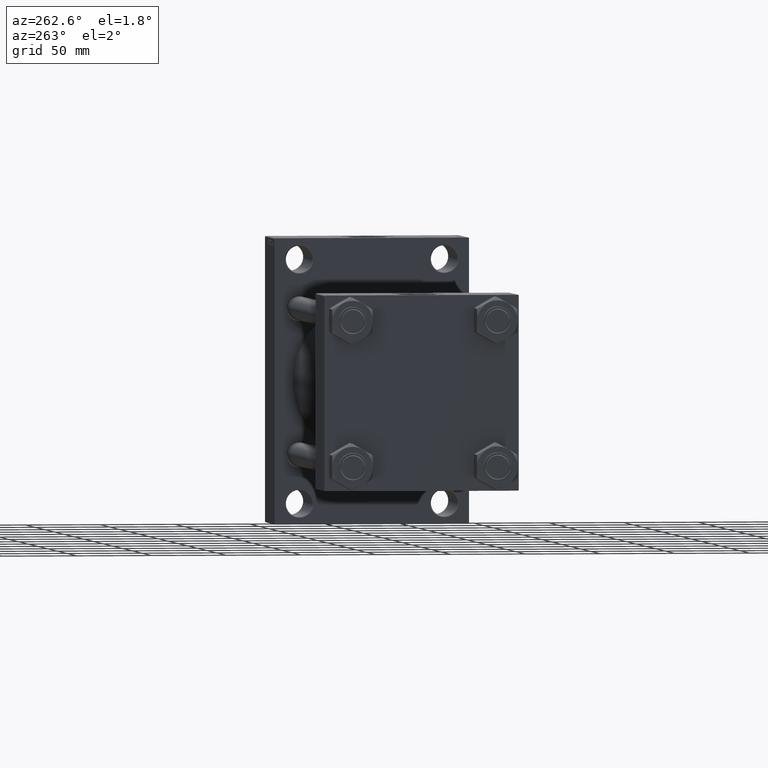
[diagram: clean part render]
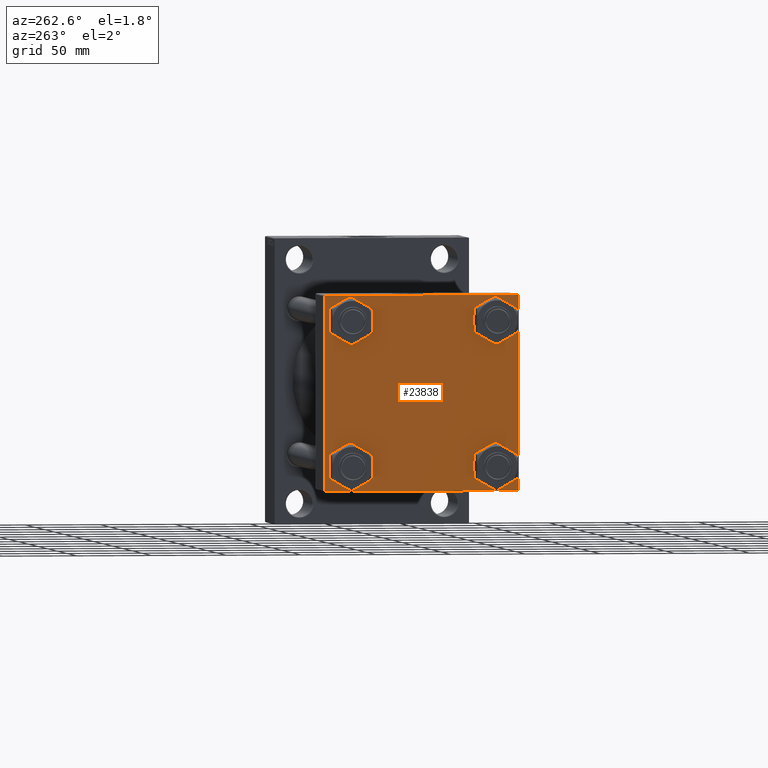
[diagram: same view with one face highlighted and labeled with its STEP entity id]
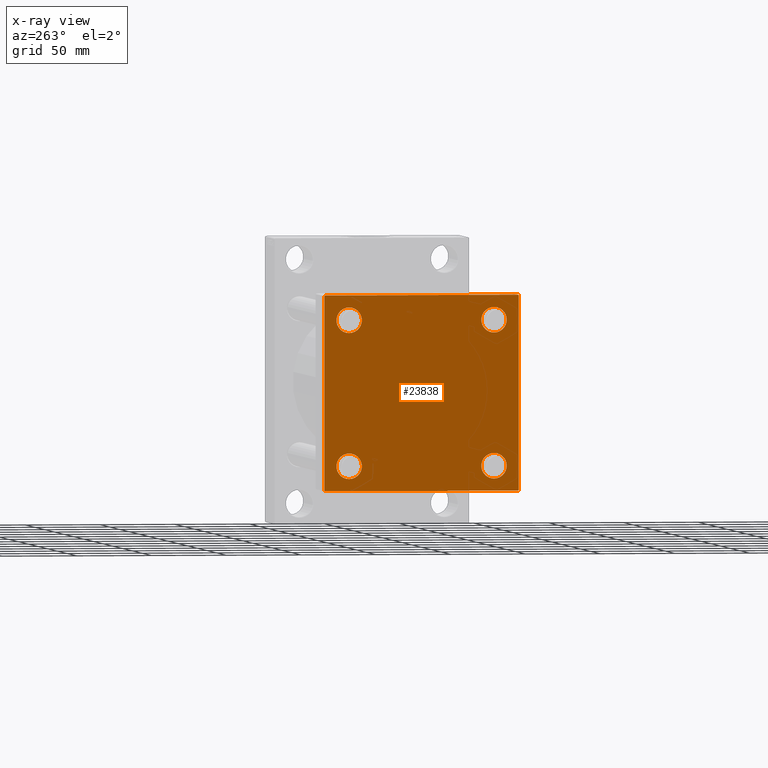
[diagram: x-ray of the same camera — body ghosted, the highlighted face saturated]
A machine part, auxiliary view. The second image highlights one B-rep face of the part: STEP entity #23838.
The next image is the same camera in x-ray: the body ghosted, the highlighted face saturated — about 0% of this face is hidden behind the body in this view.
In plain terms, the highlighted planar face has unit normal (-1, 0, 0).
Its self-contained STEP definition (entity closure, byte-faithful):
#43 = VERTEX_POINT ( 'NONE', #19700 ) ;
#137 = ORIENTED_EDGE ( 'NONE', *, *, #29855, .T. ) ;
#1034 = EDGE_CURVE ( 'NONE', #43, #4704, #29228, .T. ) ;
#1910 = CARTESIAN_POINT ( 'NONE',  ( 0.000000000000000000, 65.00000000000000000, -64.49999999999995737 ) ) ;
#1959 = EDGE_LOOP ( 'NONE', ( #34571, #24344 ) ) ;
#2569 = FACE_BOUND ( 'NONE', #22205, .T. ) ;
#4489 = ORIENTED_EDGE ( 'NONE', *, *, #38841, .T. ) ;
#4503 = CIRCLE ( 'NONE', #31686, 8.500000000000007105 ) ;
#4596 = AXIS2_PLACEMENT_3D ( 'NONE', #13639, #31875, #43528 ) ;
#4671 = AXIS2_PLACEMENT_3D ( 'NONE', #17867, #13079, #32695 ) ;
#4704 = VERTEX_POINT ( 'NONE', #11663 ) ;
#6111 = VECTOR ( 'NONE', #21741, 1000.000000000000000 ) ;
#6198 = CARTESIAN_POINT ( 'NONE',  ( 0.000000000000000000, 64.49999999999997158, 65.00000000000001421 ) ) ;
#6477 = FACE_BOUND ( 'NONE', #31583, .T. ) ;
#6911 = EDGE_CURVE ( 'NONE', #29874, #20203, #35821, .T. ) ;
#6914 = CARTESIAN_POINT ( 'NONE',  ( 0.000000000000000000, 65.00000000000000000, 65.00000000000001421 ) ) ;
#7453 = EDGE_CURVE ( 'NONE', #34579, #45502, #28599, .T. ) ;
#7520 = CARTESIAN_POINT ( 'NONE',  ( 0.000000000000000000, -48.44999999999998153, 48.45000000000000995 ) ) ;
#8111 = EDGE_CURVE ( 'NONE', #29839, #18257, #18863, .T. ) ;
#8289 = CARTESIAN_POINT ( 'NONE',  ( 0.000000000000000000, 64.49999999999997158, -64.99999999999998579 ) ) ;
#8291 = ORIENTED_EDGE ( 'NONE', *, *, #45063, .T. ) ;
#9216 = DIRECTION ( 'NONE',  ( 0.000000000000000000, -1.000000000000000000, -2.135044278125300850E-16 ) ) ;
#9386 = VECTOR ( 'NONE', #24961, 1000.000000000000000 ) ;
#9850 = LINE ( 'NONE', #28564, #17205 ) ;
#10366 = VERTEX_POINT ( 'NONE', #6198 ) ;
#10371 = DIRECTION ( 'NONE',  ( -0.000000000000000000, 0.000000000000000000, 1.000000000000000000 ) ) ;
#10756 = EDGE_CURVE ( 'NONE', #16795, #23163, #38725, .T. ) ;
#10990 = DIRECTION ( 'NONE',  ( 1.000000000000000000, -0.000000000000000000, 0.000000000000000000 ) ) ;
#11216 = EDGE_LOOP ( 'NONE', ( #25351, #38980, #8291, #15106, #20060, #46714, #41236, #35990 ) ) ;
#11654 = DIRECTION ( 'NONE',  ( 0.000000000000000000, 0.000000000000000000, 1.000000000000000000 ) ) ;
#11663 = CARTESIAN_POINT ( 'NONE',  ( 0.000000000000000000, -48.44999999999998153, 56.95000000000001705 ) ) ;
#12425 = ORIENTED_EDGE ( 'NONE', *, *, #20228, .T. ) ;
#12533 = EDGE_CURVE ( 'NONE', #45502, #34579, #30972, .T. ) ;
#12696 = LINE ( 'NONE', #35523, #18445 ) ;
#12857 = VECTOR ( 'NONE', #9216, 1000.000000000000000 ) ;
#13079 = DIRECTION ( 'NONE',  ( 1.000000000000000000, -0.000000000000000000, 0.000000000000000000 ) ) ;
#13639 = CARTESIAN_POINT ( 'NONE',  ( 0.000000000000000000, 48.44999999999999574, -48.44999999999999574 ) ) ;
#14934 = EDGE_CURVE ( 'NONE', #42110, #24221, #31777, .T. ) ;
#15106 = ORIENTED_EDGE ( 'NONE', *, *, #6911, .T. ) ;
#15623 = CIRCLE ( 'NONE', #41995, 8.500000000000007105 ) ;
#16795 = VERTEX_POINT ( 'NONE', #33232 ) ;
#17205 = VECTOR ( 'NONE', #28815, 1000.000000000000114 ) ;
#17867 = CARTESIAN_POINT ( 'NONE',  ( 0.000000000000000000, -48.44999999999998153, 48.45000000000000995 ) ) ;
#18044 = CARTESIAN_POINT ( 'NONE',  ( 0.000000000000000000, 48.44999999999999574, 48.44999999999999574 ) ) ;
#18257 = VERTEX_POINT ( 'NONE', #19716 ) ;
#18410 = DIRECTION ( 'NONE',  ( 1.000000000000000000, -0.000000000000000000, 0.000000000000000000 ) ) ;
#18445 = VECTOR ( 'NONE', #31410, 1000.000000000000114 ) ;
#18863 = LINE ( 'NONE', #26396, #46502 ) ;
#19655 = CARTESIAN_POINT ( 'NONE',  ( 0.000000000000000000, 48.44999999999999574, 48.44999999999999574 ) ) ;
#19700 = CARTESIAN_POINT ( 'NONE',  ( 0.000000000000000000, -48.44999999999998153, 39.95000000000000284 ) ) ;
#19716 = CARTESIAN_POINT ( 'NONE',  ( 0.000000000000000000, -64.49999999999997158, 64.99999999999998579 ) ) ;
#19968 = CARTESIAN_POINT ( 'NONE',  ( 0.000000000000000000, 48.44999999999999574, -56.95000000000000284 ) ) ;
#20060 = ORIENTED_EDGE ( 'NONE', *, *, #22652, .F. ) ;
#20084 = AXIS2_PLACEMENT_3D ( 'NONE', #18044, #10990, #25320 ) ;
#20203 = VERTEX_POINT ( 'NONE', #29443 ) ;
#20228 = EDGE_CURVE ( 'NONE', #42403, #23388, #4503, .T. ) ;
#20244 = DIRECTION ( 'NONE',  ( 0.000000000000000000, 0.000000000000000000, -1.000000000000000000 ) ) ;
#20587 = CARTESIAN_POINT ( 'NONE',  ( 0.000000000000000000, 65.00000000000000000, 65.00000000000001421 ) ) ;
#20813 = CARTESIAN_POINT ( 'NONE',  ( 0.000000000000000000, 65.00000000000000000, 64.49999999999998579 ) ) ;
#21070 = FACE_BOUND ( 'NONE', #1959, .T. ) ;
#21303 = FACE_OUTER_BOUND ( 'NONE', #11216, .T. ) ;
#21741 = DIRECTION ( 'NONE',  ( 0.000000000000000000, -1.000000000000000000, -2.135044278125300850E-16 ) ) ;
#22138 = CARTESIAN_POINT ( 'NONE',  ( 0.000000000000000000, -48.44999999999998153, -48.45000000000000995 ) ) ;
#22205 = EDGE_LOOP ( 'NONE', ( #25021, #32159 ) ) ;
#22652 = EDGE_CURVE ( 'NONE', #29839, #20203, #27536, .T. ) ;
#22834 = DIRECTION ( 'NONE',  ( 1.000000000000000000, -0.000000000000000000, 0.000000000000000000 ) ) ;
#23163 = VERTEX_POINT ( 'NONE', #45642 ) ;
#23388 = VERTEX_POINT ( 'NONE', #24886 ) ;
#23838 = ADVANCED_FACE ( 'NONE', ( #21070, #35893, #2569, #6477, #21303 ), #36124, .T. ) ;
#23881 = CARTESIAN_POINT ( 'NONE',  ( 0.000000000000000000, -65.00000000000000000, 64.99999999999998579 ) ) ;
#23940 = VECTOR ( 'NONE', #36056, 1000.000000000000114 ) ;
#24221 = VERTEX_POINT ( 'NONE', #1910 ) ;
#24344 = ORIENTED_EDGE ( 'NONE', *, *, #1034, .T. ) ;
#24886 = CARTESIAN_POINT ( 'NONE',  ( 0.000000000000000000, -48.44999999999998153, -39.95000000000000284 ) ) ;
#24944 = EDGE_CURVE ( 'NONE', #10366, #18257, #25374, .T. ) ;
#24961 = DIRECTION ( 'NONE',  ( 0.000000000000000000, 0.000000000000000000, -1.000000000000000000 ) ) ;
#25021 = ORIENTED_EDGE ( 'NONE', *, *, #7453, .T. ) ;
#25320 = DIRECTION ( 'NONE',  ( 0.000000000000000000, 0.000000000000000000, 1.000000000000000000 ) ) ;
#25351 = ORIENTED_EDGE ( 'NONE', *, *, #14934, .T. ) ;
#25374 = LINE ( 'NONE', #6914, #6111 ) ;
#25464 = AXIS2_PLACEMENT_3D ( 'NONE', #32490, #43661, #10371 ) ;
#26111 = AXIS2_PLACEMENT_3D ( 'NONE', #7520, #45185, #11654 ) ;
#26396 = CARTESIAN_POINT ( 'NONE',  ( -0.000000000000000000, -64.74999999999819522, 64.75000000000179057 ) ) ;
#27449 = CARTESIAN_POINT ( 'NONE',  ( 0.000000000000000000, 48.44999999999999574, -48.44999999999999574 ) ) ;
#27536 = LINE ( 'NONE', #23881, #30876 ) ;
#27572 = CARTESIAN_POINT ( 'NONE',  ( 0.000000000000000000, -48.44999999999998153, -56.95000000000001705 ) ) ;
#27927 = CARTESIAN_POINT ( 'NONE',  ( 0.000000000000000000, 65.00000000000000000, -64.99999999999998579 ) ) ;
#28346 = EDGE_CURVE ( 'NONE', #4704, #43, #34187, .T. ) ;
#28564 = CARTESIAN_POINT ( 'NONE',  ( 0.000000000000000000, 64.74999999999998579, 64.74999999999998579 ) ) ;
#28599 = CIRCLE ( 'NONE', #37170, 8.500000000000007105 ) ;
#28815 = DIRECTION ( 'NONE',  ( 0.000000000000000000, 0.7071067811865474617, -0.7071067811865474617 ) ) ;
#28940 = CARTESIAN_POINT ( 'NONE',  ( 0.000000000000000000, -65.00000000000000000, 64.49999999999998579 ) ) ;
#29228 = CIRCLE ( 'NONE', #26111, 8.500000000000007105 ) ;
#29366 = DIRECTION ( 'NONE',  ( 0.000000000000000000, 0.000000000000000000, 1.000000000000000000 ) ) ;
#29443 = CARTESIAN_POINT ( 'NONE',  ( 0.000000000000000000, -65.00000000000000000, -64.49999999999995737 ) ) ;
#29839 = VERTEX_POINT ( 'NONE', #28940 ) ;
#29855 = EDGE_CURVE ( 'NONE', #23163, #16795, #15623, .T. ) ;
#29874 = VERTEX_POINT ( 'NONE', #41519 ) ;
#30362 = DIRECTION ( 'NONE',  ( 0.000000000000000000, 0.000000000000000000, 1.000000000000000000 ) ) ;
#30876 = VECTOR ( 'NONE', #20244, 1000.000000000000000 ) ;
#30972 = CIRCLE ( 'NONE', #4596, 8.500000000000007105 ) ;
#31410 = DIRECTION ( 'NONE',  ( -0.000000000000000000, -0.7071067811865474617, -0.7071067811865474617 ) ) ;
#31583 = EDGE_LOOP ( 'NONE', ( #34646, #137 ) ) ;
#31686 = AXIS2_PLACEMENT_3D ( 'NONE', #22138, #44261, #48146 ) ;
#31777 = LINE ( 'NONE', #20587, #9386 ) ;
#31875 = DIRECTION ( 'NONE',  ( 1.000000000000000000, -0.000000000000000000, 0.000000000000000000 ) ) ;
#32159 = ORIENTED_EDGE ( 'NONE', *, *, #12533, .T. ) ;
#32261 = VERTEX_POINT ( 'NONE', #8289 ) ;
#32490 = CARTESIAN_POINT ( 'NONE',  ( 0.000000000000000000, 0.000000000000000000, 0.000000000000000000 ) ) ;
#32695 = DIRECTION ( 'NONE',  ( 0.000000000000000000, 0.000000000000000000, 1.000000000000000000 ) ) ;
#33000 = CARTESIAN_POINT ( 'NONE',  ( 0.000000000000000000, -48.44999999999998153, -48.45000000000000995 ) ) ;
#33232 = CARTESIAN_POINT ( 'NONE',  ( 0.000000000000000000, 48.44999999999999574, 56.95000000000000284 ) ) ;
#34187 = CIRCLE ( 'NONE', #4671, 8.500000000000007105 ) ;
#34571 = ORIENTED_EDGE ( 'NONE', *, *, #28346, .T. ) ;
#34579 = VERTEX_POINT ( 'NONE', #44439 ) ;
#34646 = ORIENTED_EDGE ( 'NONE', *, *, #10756, .T. ) ;
#35523 = CARTESIAN_POINT ( 'NONE',  ( 0.000000000000000000, 64.74999999999997158, -64.74999999999997158 ) ) ;
#35821 = LINE ( 'NONE', #47952, #23940 ) ;
#35893 = FACE_BOUND ( 'NONE', #42323, .T. ) ;
#35920 = EDGE_CURVE ( 'NONE', #10366, #42110, #9850, .T. ) ;
#35990 = ORIENTED_EDGE ( 'NONE', *, *, #35920, .T. ) ;
#36056 = DIRECTION ( 'NONE',  ( 0.000000000000000000, -0.7071067811865474617, 0.7071067811865474617 ) ) ;
#36124 = PLANE ( 'NONE',  #25464 ) ;
#37170 = AXIS2_PLACEMENT_3D ( 'NONE', #27449, #43713, #43950 ) ;
#38291 = AXIS2_PLACEMENT_3D ( 'NONE', #33000, #18410, #29366 ) ;
#38725 = CIRCLE ( 'NONE', #20084, 8.500000000000007105 ) ;
#38841 = EDGE_CURVE ( 'NONE', #23388, #42403, #39066, .T. ) ;
#38980 = ORIENTED_EDGE ( 'NONE', *, *, #46838, .T. ) ;
#39066 = CIRCLE ( 'NONE', #38291, 8.500000000000007105 ) ;
#41204 = DIRECTION ( 'NONE',  ( -0.000000000000000000, 0.7071067811865672237, 0.7071067811865279218 ) ) ;
#41236 = ORIENTED_EDGE ( 'NONE', *, *, #24944, .F. ) ;
#41519 = CARTESIAN_POINT ( 'NONE',  ( 0.000000000000000000, -64.49999999999994316, -65.00000000000001421 ) ) ;
#41995 = AXIS2_PLACEMENT_3D ( 'NONE', #19655, #22834, #30362 ) ;
#42110 = VERTEX_POINT ( 'NONE', #20813 ) ;
#42323 = EDGE_LOOP ( 'NONE', ( #4489, #12425 ) ) ;
#42403 = VERTEX_POINT ( 'NONE', #27572 ) ;
#43528 = DIRECTION ( 'NONE',  ( 0.000000000000000000, 0.000000000000000000, 1.000000000000000000 ) ) ;
#43661 = DIRECTION ( 'NONE',  ( -1.000000000000000000, 0.000000000000000000, -0.000000000000000000 ) ) ;
#43713 = DIRECTION ( 'NONE',  ( 1.000000000000000000, -0.000000000000000000, 0.000000000000000000 ) ) ;
#43950 = DIRECTION ( 'NONE',  ( 0.000000000000000000, 0.000000000000000000, 1.000000000000000000 ) ) ;
#44261 = DIRECTION ( 'NONE',  ( 1.000000000000000000, -0.000000000000000000, 0.000000000000000000 ) ) ;
#44439 = CARTESIAN_POINT ( 'NONE',  ( 0.000000000000000000, 48.44999999999999574, -39.94999999999998863 ) ) ;
#45063 = EDGE_CURVE ( 'NONE', #32261, #29874, #46385, .T. ) ;
#45185 = DIRECTION ( 'NONE',  ( 1.000000000000000000, -0.000000000000000000, 0.000000000000000000 ) ) ;
#45502 = VERTEX_POINT ( 'NONE', #19968 ) ;
#45642 = CARTESIAN_POINT ( 'NONE',  ( 0.000000000000000000, 48.44999999999999574, 39.94999999999998863 ) ) ;
#46385 = LINE ( 'NONE', #27927, #12857 ) ;
#46502 = VECTOR ( 'NONE', #41204, 1000.000000000000000 ) ;
#46714 = ORIENTED_EDGE ( 'NONE', *, *, #8111, .T. ) ;
#46838 = EDGE_CURVE ( 'NONE', #24221, #32261, #12696, .T. ) ;
#47952 = CARTESIAN_POINT ( 'NONE',  ( 0.000000000000000000, -64.74999999999997158, -64.74999999999997158 ) ) ;
#48146 = DIRECTION ( 'NONE',  ( 0.000000000000000000, 0.000000000000000000, 1.000000000000000000 ) ) ;